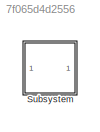
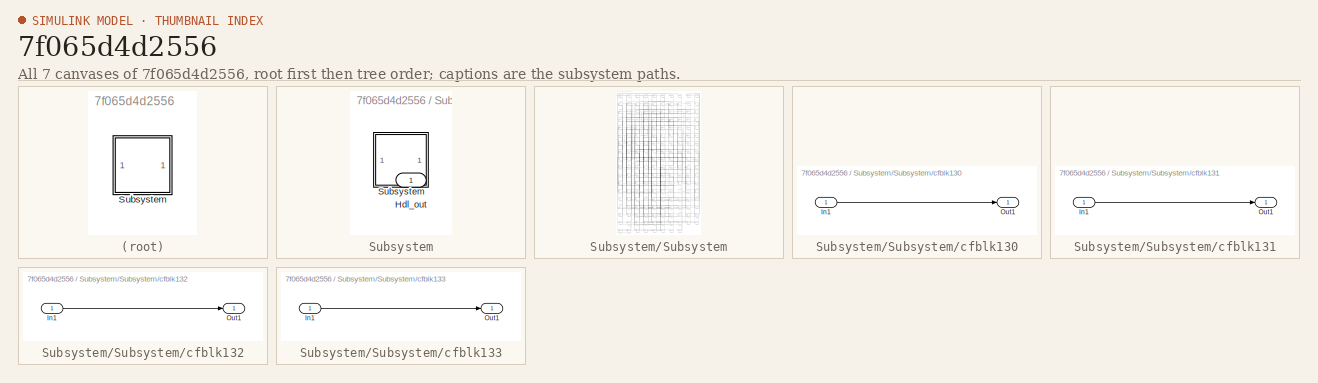
[diagram: thumbnail index - all 7 canvases of the model, root first then tree order]
MODEL slx_7f065d4d2556
KIND model
CONFIG AbsTol = auto
CONFIG EnableMultiTasking = off
CONFIG FixedStep = auto
CONFIG MaxStep = auto
CONFIG MinStep = auto
CONFIG RelTol = 1e-3
CONFIG SampleTimeConstraint = Unconstrained
CONFIG SolverName = VariableStepAuto
CONFIG StartTime = 0.0
CONFIG StopTime = 10.0
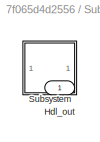
BLOCK [SubSystem] Subsystem
BLOCK [Outport] Subsystem/Hdl_out
  OutDataTypeStr = uint8
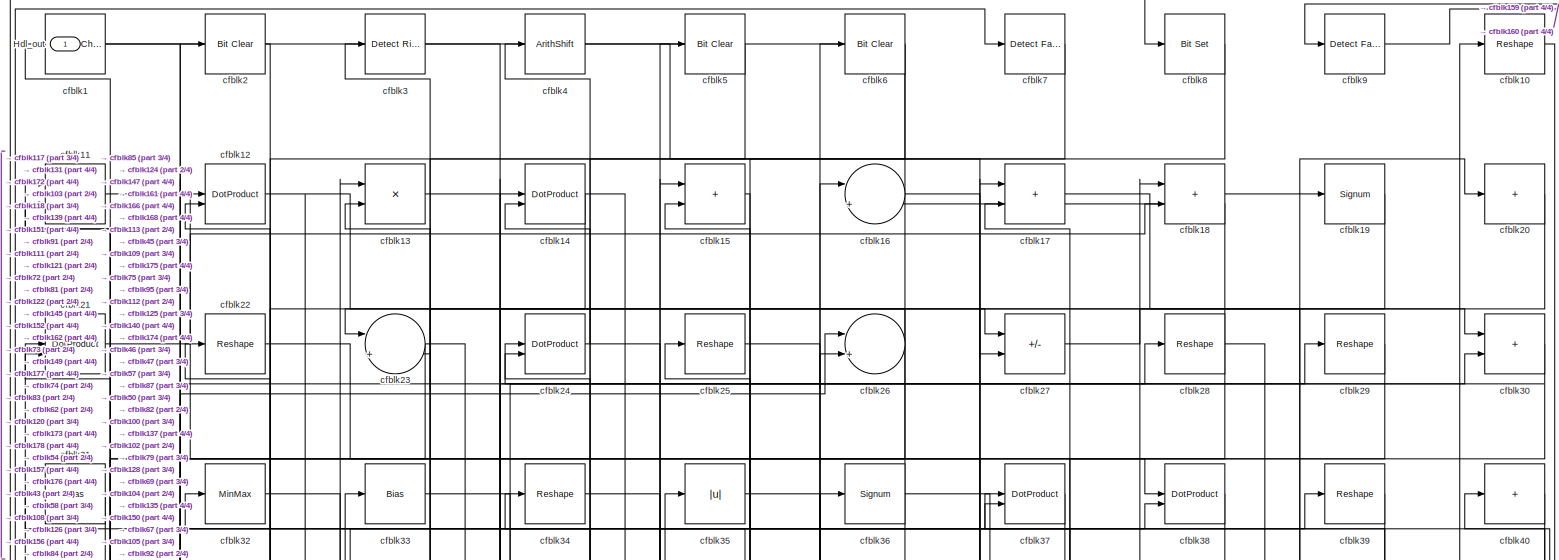
[diagram: Subsystem/Subsystem - part 1/4, full width, top band]
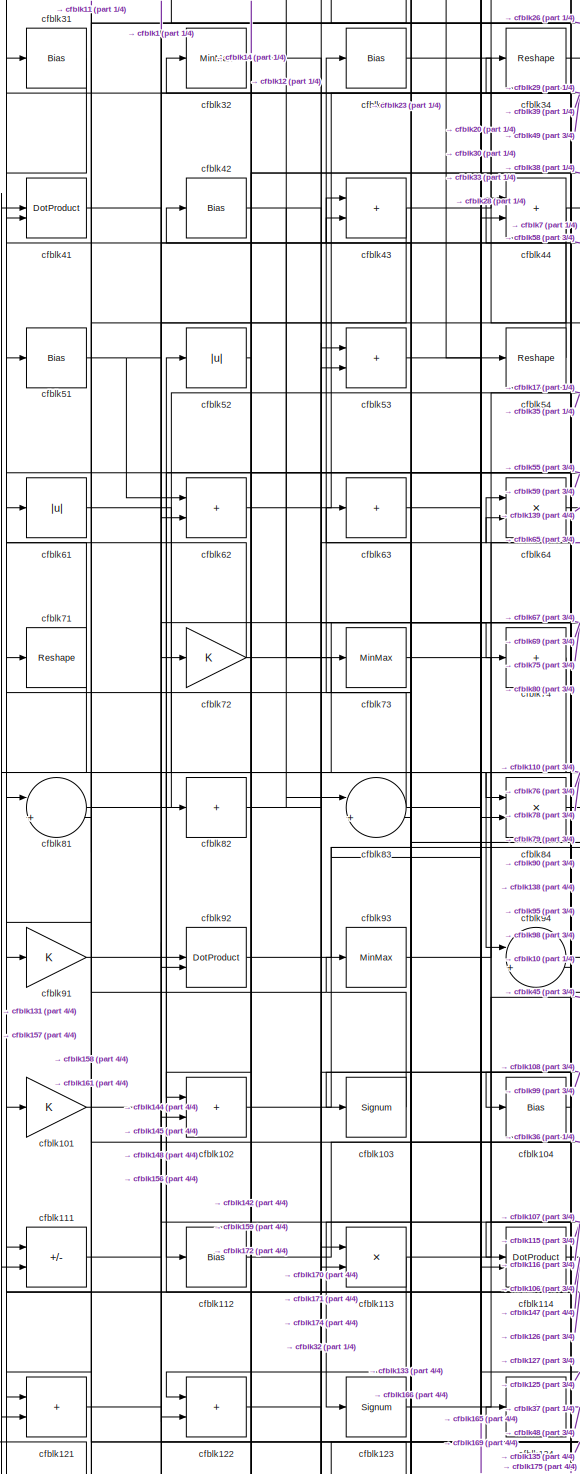
[diagram: Subsystem/Subsystem - part 2/4, middle left region]
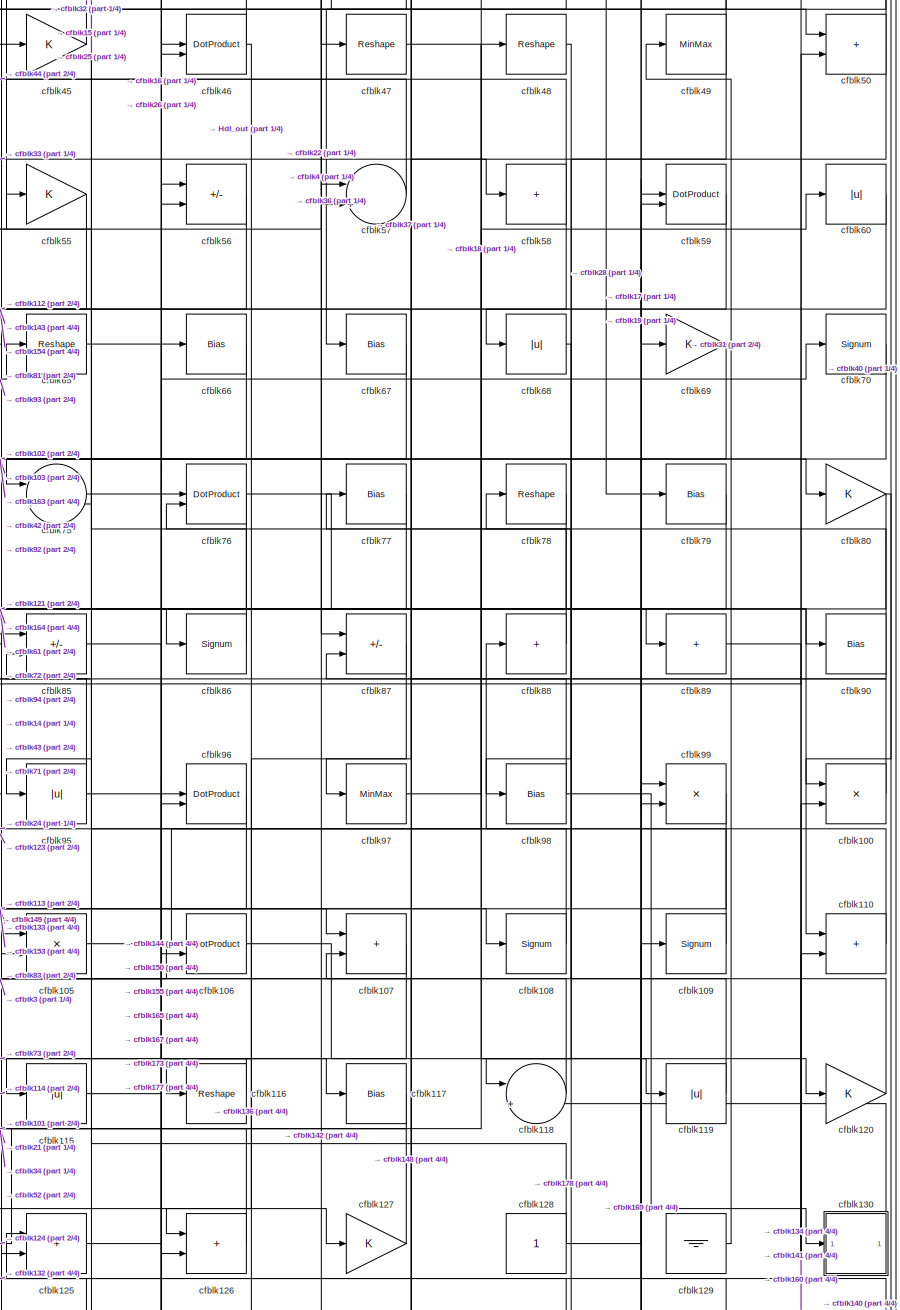
[diagram: Subsystem/Subsystem - part 3/4, middle right region]
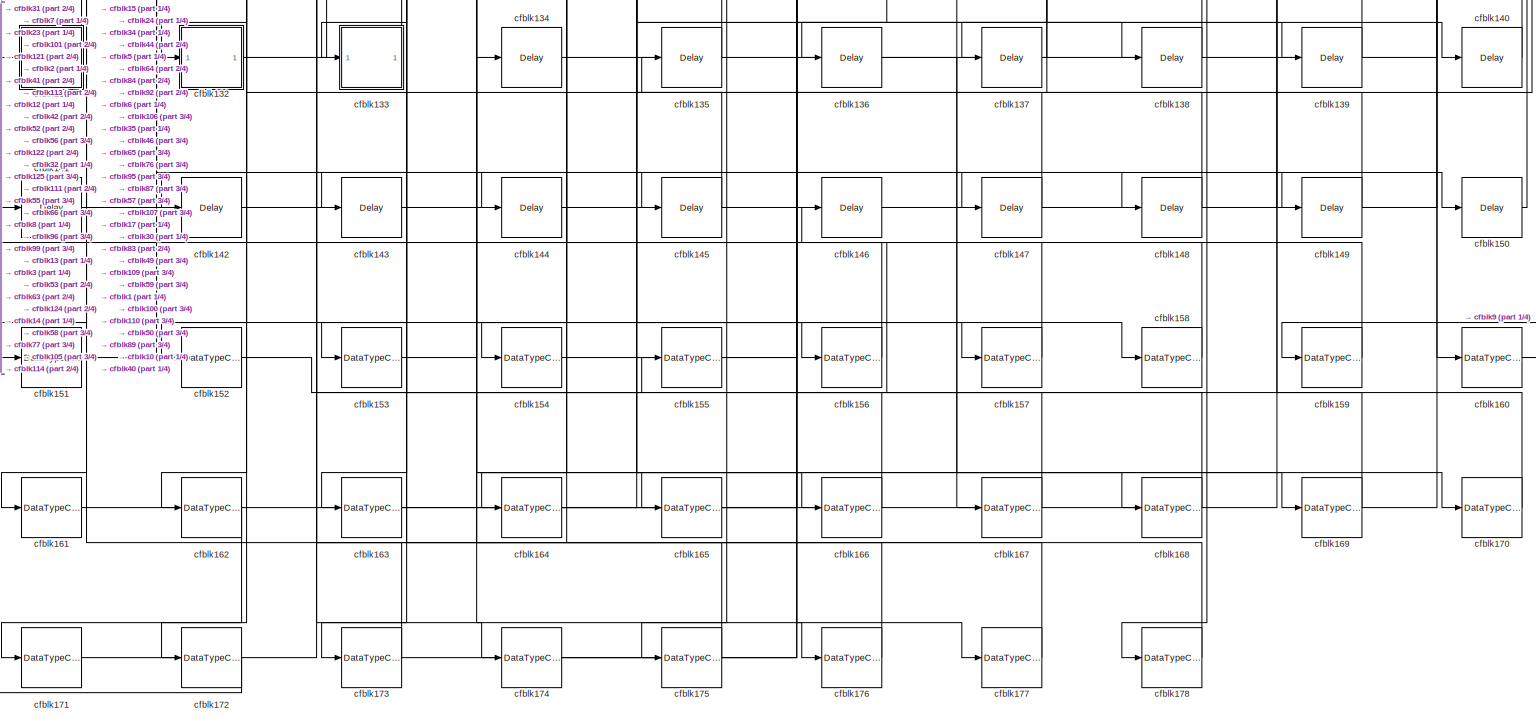
[diagram: Subsystem/Subsystem - part 4/4, full width, bottom band]
BLOCK [SubSystem] Subsystem/Subsystem
BLOCK [Outport] Subsystem/Subsystem/Hdl_out
  OutDataTypeStr = uint8
BLOCK [Reference] Subsystem/Subsystem/cfblk1  REF=simulink/Logic and Bit
Operations/Detect
Change
  LibrarySourceBlock = hdlsllib/Logic and Bit\nOperations/Detect\nChange
  SourceBlock = simulink/Logic and Bit\nOperations/Detect\nChange
  SourceType = Detect Change
BLOCK [Reshape] Subsystem/Subsystem/cfblk10
BLOCK [Product] Subsystem/Subsystem/cfblk100
  Inputs = */
  OutDataTypeStr = uint8
  RndMeth = Zero
  SaturateOnIntegerOverflow = on
BLOCK [Gain] Subsystem/Subsystem/cfblk101
  OutDataTypeStr = uint8
BLOCK [Sum] Subsystem/Subsystem/cfblk102
  IconShape = rectangular
  OutDataTypeStr = uint8
BLOCK [Signum] Subsystem/Subsystem/cfblk103
BLOCK [Bias] Subsystem/Subsystem/cfblk104
  Bias = 0.0
  SaturateOnIntegerOverflow = off
BLOCK [Product] Subsystem/Subsystem/cfblk105
  Inputs = */
  OutDataTypeStr = uint8
  RndMeth = Zero
  SaturateOnIntegerOverflow = on
BLOCK [DotProduct] Subsystem/Subsystem/cfblk106
  OutDataTypeStr = uint8
BLOCK [Sum] Subsystem/Subsystem/cfblk107
  IconShape = rectangular
  OutDataTypeStr = uint8
BLOCK [Signum] Subsystem/Subsystem/cfblk108
BLOCK [Signum] Subsystem/Subsystem/cfblk109
BLOCK [Product] Subsystem/Subsystem/cfblk11
  Inputs = */
  OutDataTypeStr = uint8
  RndMeth = Zero
  SaturateOnIntegerOverflow = on
BLOCK [Sum] Subsystem/Subsystem/cfblk110
  IconShape = rectangular
  OutDataTypeStr = uint8
BLOCK [Sum] Subsystem/Subsystem/cfblk111
  IconShape = rectangular
  Inputs = +-
  OutDataTypeStr = uint8
BLOCK [Bias] Subsystem/Subsystem/cfblk112
  Bias = 0.0
  SaturateOnIntegerOverflow = off
BLOCK [Product] Subsystem/Subsystem/cfblk113
  Inputs = */
  OutDataTypeStr = uint8
  RndMeth = Zero
  SaturateOnIntegerOverflow = on
BLOCK [DotProduct] Subsystem/Subsystem/cfblk114
  OutDataTypeStr = uint8
BLOCK [Abs] Subsystem/Subsystem/cfblk115
  OutDataTypeStr = uint8
  SaturateOnIntegerOverflow = off
BLOCK [Reshape] Subsystem/Subsystem/cfblk116
BLOCK [Bias] Subsystem/Subsystem/cfblk117
  Bias = 0.0
  SaturateOnIntegerOverflow = off
BLOCK [Sum] Subsystem/Subsystem/cfblk118
  Inputs = |++
  OutDataTypeStr = uint8
BLOCK [Abs] Subsystem/Subsystem/cfblk119
  OutDataTypeStr = uint8
  SaturateOnIntegerOverflow = off
BLOCK [DotProduct] Subsystem/Subsystem/cfblk12
  OutDataTypeStr = uint8
BLOCK [Gain] Subsystem/Subsystem/cfblk120
  OutDataTypeStr = uint8
BLOCK [Sum] Subsystem/Subsystem/cfblk121
  IconShape = rectangular
  OutDataTypeStr = uint8
BLOCK [Sum] Subsystem/Subsystem/cfblk122
  IconShape = rectangular
  OutDataTypeStr = uint8
BLOCK [Signum] Subsystem/Subsystem/cfblk123
BLOCK [Sum] Subsystem/Subsystem/cfblk124
  IconShape = rectangular
  Inputs = +
  OutDataTypeStr = uint8
BLOCK [Sum] Subsystem/Subsystem/cfblk125
  IconShape = rectangular
  OutDataTypeStr = uint8
BLOCK [Sum] Subsystem/Subsystem/cfblk126
  IconShape = rectangular
  OutDataTypeStr = uint8
BLOCK [Gain] Subsystem/Subsystem/cfblk127
  OutDataTypeStr = uint8
BLOCK [Constant] Subsystem/Subsystem/cfblk128
  OutDataTypeStr = uint8
  SampleTime = -1
BLOCK [Ground] Subsystem/Subsystem/cfblk129
BLOCK [Product] Subsystem/Subsystem/cfblk13
  Inputs = */
  OutDataTypeStr = uint8
  RndMeth = Zero
  SaturateOnIntegerOverflow = on
BLOCK [SubSystem] Subsystem/Subsystem/cfblk130
  LibrarySourceBlock = hdlsllib/Ports &\nSubsystems/Subsystem
BLOCK [Inport] Subsystem/Subsystem/cfblk130/In1
BLOCK [Outport] Subsystem/Subsystem/cfblk130/Out1
BLOCK [SubSystem] Subsystem/Subsystem/cfblk131
  LibrarySourceBlock = hdlsllib/Ports &\nSubsystems/Subsystem
BLOCK [Inport] Subsystem/Subsystem/cfblk131/In1
BLOCK [Outport] Subsystem/Subsystem/cfblk131/Out1
BLOCK [SubSystem] Subsystem/Subsystem/cfblk132
  LibrarySourceBlock = hdlsllib/Ports &\nSubsystems/Subsystem
BLOCK [Inport] Subsystem/Subsystem/cfblk132/In1
BLOCK [Outport] Subsystem/Subsystem/cfblk132/Out1
BLOCK [SubSystem] Subsystem/Subsystem/cfblk133
  LibrarySourceBlock = hdlsllib/Ports &\nSubsystems/Subsystem
BLOCK [Inport] Subsystem/Subsystem/cfblk133/In1
BLOCK [Outport] Subsystem/Subsystem/cfblk133/Out1
BLOCK [Delay] Subsystem/Subsystem/cfblk134
  InputPortMap = u0
  SampleTime = 1
BLOCK [Delay] Subsystem/Subsystem/cfblk135
  InputPortMap = u0
  SampleTime = 1
BLOCK [Delay] Subsystem/Subsystem/cfblk136
  InputPortMap = u0
  SampleTime = 1
BLOCK [Delay] Subsystem/Subsystem/cfblk137
  InputPortMap = u0
  SampleTime = 1
BLOCK [Delay] Subsystem/Subsystem/cfblk138
  InputPortMap = u0
  SampleTime = 1
BLOCK [Delay] Subsystem/Subsystem/cfblk139
  InputPortMap = u0
  SampleTime = 1
BLOCK [DotProduct] Subsystem/Subsystem/cfblk14
  OutDataTypeStr = uint8
BLOCK [Delay] Subsystem/Subsystem/cfblk140
  InputPortMap = u0
  SampleTime = 1
BLOCK [Delay] Subsystem/Subsystem/cfblk141
  InputPortMap = u0
  SampleTime = 1
BLOCK [Delay] Subsystem/Subsystem/cfblk142
  InputPortMap = u0
  SampleTime = 1
BLOCK [Delay] Subsystem/Subsystem/cfblk143
  InputPortMap = u0
  SampleTime = 1
BLOCK [Delay] Subsystem/Subsystem/cfblk144
  InputPortMap = u0
  SampleTime = 1
BLOCK [Delay] Subsystem/Subsystem/cfblk145
  InputPortMap = u0
  SampleTime = 1
BLOCK [Delay] Subsystem/Subsystem/cfblk146
  InputPortMap = u0
  SampleTime = 1
BLOCK [Delay] Subsystem/Subsystem/cfblk147
  InputPortMap = u0
  SampleTime = 1
BLOCK [Delay] Subsystem/Subsystem/cfblk148
  InputPortMap = u0
  SampleTime = 1
BLOCK [Delay] Subsystem/Subsystem/cfblk149
  InputPortMap = u0
  SampleTime = 1
BLOCK [Sum] Subsystem/Subsystem/cfblk15
  IconShape = rectangular
  OutDataTypeStr = uint8
BLOCK [Delay] Subsystem/Subsystem/cfblk150
  InputPortMap = u0
  SampleTime = 1
BLOCK [DataTypeConversion] Subsystem/Subsystem/cfblk151
  OutDataTypeStr = uint8
  RndMeth = Floor
  SaturateOnIntegerOverflow = off
BLOCK [DataTypeConversion] Subsystem/Subsystem/cfblk152
  OutDataTypeStr = uint8
  RndMeth = Floor
  SaturateOnIntegerOverflow = off
BLOCK [DataTypeConversion] Subsystem/Subsystem/cfblk153
  OutDataTypeStr = uint8
  RndMeth = Floor
  SaturateOnIntegerOverflow = off
BLOCK [DataTypeConversion] Subsystem/Subsystem/cfblk154
  OutDataTypeStr = uint8
  RndMeth = Floor
  SaturateOnIntegerOverflow = off
BLOCK [DataTypeConversion] Subsystem/Subsystem/cfblk155
  OutDataTypeStr = uint8
  RndMeth = Floor
  SaturateOnIntegerOverflow = off
BLOCK [DataTypeConversion] Subsystem/Subsystem/cfblk156
  OutDataTypeStr = uint8
  RndMeth = Floor
  SaturateOnIntegerOverflow = off
BLOCK [DataTypeConversion] Subsystem/Subsystem/cfblk157
  OutDataTypeStr = uint8
  RndMeth = Floor
  SaturateOnIntegerOverflow = off
BLOCK [DataTypeConversion] Subsystem/Subsystem/cfblk158
  OutDataTypeStr = uint8
  RndMeth = Floor
  SaturateOnIntegerOverflow = off
BLOCK [DataTypeConversion] Subsystem/Subsystem/cfblk159
  OutDataTypeStr = uint8
  RndMeth = Floor
  SaturateOnIntegerOverflow = off
BLOCK [Sum] Subsystem/Subsystem/cfblk16
  Inputs = |++
  OutDataTypeStr = uint8
BLOCK [DataTypeConversion] Subsystem/Subsystem/cfblk160
  OutDataTypeStr = uint8
  RndMeth = Floor
  SaturateOnIntegerOverflow = off
BLOCK [DataTypeConversion] Subsystem/Subsystem/cfblk161
  OutDataTypeStr = uint8
  RndMeth = Floor
  SaturateOnIntegerOverflow = off
BLOCK [DataTypeConversion] Subsystem/Subsystem/cfblk162
  OutDataTypeStr = uint8
  RndMeth = Floor
  SaturateOnIntegerOverflow = off
BLOCK [DataTypeConversion] Subsystem/Subsystem/cfblk163
  OutDataTypeStr = uint8
  RndMeth = Floor
  SaturateOnIntegerOverflow = off
BLOCK [DataTypeConversion] Subsystem/Subsystem/cfblk164
  OutDataTypeStr = uint8
  RndMeth = Floor
  SaturateOnIntegerOverflow = off
BLOCK [DataTypeConversion] Subsystem/Subsystem/cfblk165
  OutDataTypeStr = uint8
  RndMeth = Floor
  SaturateOnIntegerOverflow = off
BLOCK [DataTypeConversion] Subsystem/Subsystem/cfblk166
  OutDataTypeStr = uint8
  RndMeth = Floor
  SaturateOnIntegerOverflow = off
BLOCK [DataTypeConversion] Subsystem/Subsystem/cfblk167
  OutDataTypeStr = uint8
  RndMeth = Floor
  SaturateOnIntegerOverflow = off
BLOCK [DataTypeConversion] Subsystem/Subsystem/cfblk168
  OutDataTypeStr = uint8
  RndMeth = Floor
  SaturateOnIntegerOverflow = off
BLOCK [DataTypeConversion] Subsystem/Subsystem/cfblk169
  OutDataTypeStr = uint8
  RndMeth = Floor
  SaturateOnIntegerOverflow = off
BLOCK [Sum] Subsystem/Subsystem/cfblk17
  IconShape = rectangular
  OutDataTypeStr = uint8
BLOCK [DataTypeConversion] Subsystem/Subsystem/cfblk170
  OutDataTypeStr = uint8
  RndMeth = Floor
  SaturateOnIntegerOverflow = off
BLOCK [DataTypeConversion] Subsystem/Subsystem/cfblk171
  OutDataTypeStr = uint8
  RndMeth = Floor
  SaturateOnIntegerOverflow = off
BLOCK [DataTypeConversion] Subsystem/Subsystem/cfblk172
  OutDataTypeStr = uint8
  RndMeth = Floor
  SaturateOnIntegerOverflow = off
BLOCK [DataTypeConversion] Subsystem/Subsystem/cfblk173
  OutDataTypeStr = uint8
  RndMeth = Floor
  SaturateOnIntegerOverflow = off
BLOCK [DataTypeConversion] Subsystem/Subsystem/cfblk174
  OutDataTypeStr = uint8
  RndMeth = Floor
  SaturateOnIntegerOverflow = off
BLOCK [DataTypeConversion] Subsystem/Subsystem/cfblk175
  OutDataTypeStr = uint8
  RndMeth = Floor
  SaturateOnIntegerOverflow = off
BLOCK [DataTypeConversion] Subsystem/Subsystem/cfblk176
  OutDataTypeStr = uint8
  RndMeth = Floor
  SaturateOnIntegerOverflow = off
BLOCK [DataTypeConversion] Subsystem/Subsystem/cfblk177
  OutDataTypeStr = uint8
  RndMeth = Floor
  SaturateOnIntegerOverflow = off
BLOCK [DataTypeConversion] Subsystem/Subsystem/cfblk178
  OutDataTypeStr = uint8
  RndMeth = Floor
  SaturateOnIntegerOverflow = off
BLOCK [Sum] Subsystem/Subsystem/cfblk18
  IconShape = rectangular
  OutDataTypeStr = uint8
BLOCK [Signum] Subsystem/Subsystem/cfblk19
BLOCK [Reference] Subsystem/Subsystem/cfblk2  REF=simulink/Logic and Bit
Operations/Bit Clear
  LibrarySourceBlock = hdlsllib/Logic and Bit\nOperations/Bit Clear
  SourceBlock = simulink/Logic and Bit\nOperations/Bit Clear
  SourceType = Bit Clear
BLOCK [Sum] Subsystem/Subsystem/cfblk20
  IconShape = rectangular
  Inputs = +
  OutDataTypeStr = uint8
BLOCK [DotProduct] Subsystem/Subsystem/cfblk21
  OutDataTypeStr = uint8
BLOCK [Reshape] Subsystem/Subsystem/cfblk22
BLOCK [Sum] Subsystem/Subsystem/cfblk23
  Inputs = |++
  OutDataTypeStr = uint8
BLOCK [DotProduct] Subsystem/Subsystem/cfblk24
  OutDataTypeStr = uint8
BLOCK [Reshape] Subsystem/Subsystem/cfblk25
BLOCK [Sum] Subsystem/Subsystem/cfblk26
  Inputs = |++
  OutDataTypeStr = uint8
BLOCK [Sum] Subsystem/Subsystem/cfblk27
  IconShape = rectangular
  Inputs = +-
  OutDataTypeStr = uint8
BLOCK [Reshape] Subsystem/Subsystem/cfblk28
BLOCK [Reshape] Subsystem/Subsystem/cfblk29
BLOCK [Reference] Subsystem/Subsystem/cfblk3  REF=hdlsllib/Logic and Bit
Operations/Detect Rise
Positive
  SourceBlock = hdlsllib/Logic and Bit\nOperations/Detect Rise\nPositive
  SourceType = Detect Rise Positive
BLOCK [Sum] Subsystem/Subsystem/cfblk30
  IconShape = rectangular
  OutDataTypeStr = uint8
BLOCK [Bias] Subsystem/Subsystem/cfblk31
  Bias = 0.0
  SaturateOnIntegerOverflow = off
BLOCK [MinMax] Subsystem/Subsystem/cfblk32
  OutDataTypeStr = uint8
BLOCK [Bias] Subsystem/Subsystem/cfblk33
  Bias = 0.0
  SaturateOnIntegerOverflow = off
BLOCK [Reshape] Subsystem/Subsystem/cfblk34
BLOCK [Abs] Subsystem/Subsystem/cfblk35
  OutDataTypeStr = uint8
  SaturateOnIntegerOverflow = off
BLOCK [Signum] Subsystem/Subsystem/cfblk36
BLOCK [DotProduct] Subsystem/Subsystem/cfblk37
  OutDataTypeStr = uint8
BLOCK [DotProduct] Subsystem/Subsystem/cfblk38
  OutDataTypeStr = uint8
BLOCK [Reshape] Subsystem/Subsystem/cfblk39
BLOCK [ArithShift] Subsystem/Subsystem/cfblk4
  BitShiftNumber = 8
  InputPortMap = u0
BLOCK [Sum] Subsystem/Subsystem/cfblk40
  IconShape = rectangular
  Inputs = +
  OutDataTypeStr = uint8
BLOCK [DotProduct] Subsystem/Subsystem/cfblk41
  OutDataTypeStr = uint8
BLOCK [Bias] Subsystem/Subsystem/cfblk42
  Bias = 0.0
  SaturateOnIntegerOverflow = off
BLOCK [Sum] Subsystem/Subsystem/cfblk43
  IconShape = rectangular
  OutDataTypeStr = uint8
BLOCK [Sum] Subsystem/Subsystem/cfblk44
  IconShape = rectangular
  OutDataTypeStr = uint8
BLOCK [Gain] Subsystem/Subsystem/cfblk45
  OutDataTypeStr = uint8
BLOCK [DotProduct] Subsystem/Subsystem/cfblk46
  OutDataTypeStr = uint8
BLOCK [Reshape] Subsystem/Subsystem/cfblk47
BLOCK [Reshape] Subsystem/Subsystem/cfblk48
BLOCK [MinMax] Subsystem/Subsystem/cfblk49
  OutDataTypeStr = uint8
BLOCK [Reference] Subsystem/Subsystem/cfblk5  REF=simulink/Logic and Bit
Operations/Bit Clear
  LibrarySourceBlock = hdlsllib/Logic and Bit\nOperations/Bit Clear
  SourceBlock = simulink/Logic and Bit\nOperations/Bit Clear
  SourceType = Bit Clear
BLOCK [Sum] Subsystem/Subsystem/cfblk50
  IconShape = rectangular
  OutDataTypeStr = uint8
BLOCK [Bias] Subsystem/Subsystem/cfblk51
  Bias = 0.0
  SaturateOnIntegerOverflow = off
BLOCK [Abs] Subsystem/Subsystem/cfblk52
  OutDataTypeStr = uint8
  SaturateOnIntegerOverflow = off
BLOCK [Sum] Subsystem/Subsystem/cfblk53
  IconShape = rectangular
  OutDataTypeStr = uint8
BLOCK [Reshape] Subsystem/Subsystem/cfblk54
BLOCK [Gain] Subsystem/Subsystem/cfblk55
  OutDataTypeStr = uint8
BLOCK [Sum] Subsystem/Subsystem/cfblk56
  IconShape = rectangular
  Inputs = +-
  OutDataTypeStr = uint8
BLOCK [Sum] Subsystem/Subsystem/cfblk57
  Inputs = |++
  OutDataTypeStr = uint8
BLOCK [Sum] Subsystem/Subsystem/cfblk58
  IconShape = rectangular
  Inputs = +
  OutDataTypeStr = uint8
BLOCK [DotProduct] Subsystem/Subsystem/cfblk59
  OutDataTypeStr = uint8
BLOCK [Reference] Subsystem/Subsystem/cfblk6  REF=simulink/Logic and Bit
Operations/Bit Clear
  LibrarySourceBlock = hdlsllib/Logic and Bit\nOperations/Bit Clear
  SourceBlock = simulink/Logic and Bit\nOperations/Bit Clear
  SourceType = Bit Clear
BLOCK [Abs] Subsystem/Subsystem/cfblk60
  OutDataTypeStr = uint8
  SaturateOnIntegerOverflow = off
BLOCK [Abs] Subsystem/Subsystem/cfblk61
  OutDataTypeStr = uint8
  SaturateOnIntegerOverflow = off
BLOCK [Sum] Subsystem/Subsystem/cfblk62
  IconShape = rectangular
  OutDataTypeStr = uint8
BLOCK [Sum] Subsystem/Subsystem/cfblk63
  IconShape = rectangular
  Inputs = +
  OutDataTypeStr = uint8
BLOCK [Product] Subsystem/Subsystem/cfblk64
  Inputs = */
  OutDataTypeStr = uint8
  RndMeth = Zero
  SaturateOnIntegerOverflow = on
BLOCK [Reshape] Subsystem/Subsystem/cfblk65
BLOCK [Bias] Subsystem/Subsystem/cfblk66
  Bias = 0.0
  SaturateOnIntegerOverflow = off
BLOCK [Bias] Subsystem/Subsystem/cfblk67
  Bias = 0.0
  SaturateOnIntegerOverflow = off
BLOCK [Abs] Subsystem/Subsystem/cfblk68
  OutDataTypeStr = uint8
  SaturateOnIntegerOverflow = off
BLOCK [Gain] Subsystem/Subsystem/cfblk69
  OutDataTypeStr = uint8
BLOCK [Reference] Subsystem/Subsystem/cfblk7  REF=hdlsllib/Logic and Bit
Operations/Detect Fall
Nonpositive
  SourceBlock = hdlsllib/Logic and Bit\nOperations/Detect Fall\nNonpositive
  SourceType = Detect Fall Nonpositive
BLOCK [Signum] Subsystem/Subsystem/cfblk70
BLOCK [Reshape] Subsystem/Subsystem/cfblk71
BLOCK [Gain] Subsystem/Subsystem/cfblk72
  OutDataTypeStr = uint8
BLOCK [MinMax] Subsystem/Subsystem/cfblk73
  OutDataTypeStr = uint8
BLOCK [Sum] Subsystem/Subsystem/cfblk74
  IconShape = rectangular
  Inputs = +
  OutDataTypeStr = uint8
BLOCK [Sum] Subsystem/Subsystem/cfblk75
  Inputs = |++
  OutDataTypeStr = uint8
BLOCK [DotProduct] Subsystem/Subsystem/cfblk76
  OutDataTypeStr = uint8
BLOCK [Bias] Subsystem/Subsystem/cfblk77
  Bias = 0.0
  SaturateOnIntegerOverflow = off
BLOCK [Reshape] Subsystem/Subsystem/cfblk78
BLOCK [Bias] Subsystem/Subsystem/cfblk79
  Bias = 0.0
  SaturateOnIntegerOverflow = off
BLOCK [Reference] Subsystem/Subsystem/cfblk8  REF=simulink/Logic and Bit
Operations/Bit Set
  LibrarySourceBlock = hdlsllib/Logic and Bit\nOperations/Bit Set
  SourceBlock = simulink/Logic and Bit\nOperations/Bit Set
  SourceType = Bit Set
BLOCK [Gain] Subsystem/Subsystem/cfblk80
  OutDataTypeStr = uint8
BLOCK [Sum] Subsystem/Subsystem/cfblk81
  Inputs = |++
  OutDataTypeStr = uint8
BLOCK [Sum] Subsystem/Subsystem/cfblk82
  IconShape = rectangular
  Inputs = +
  OutDataTypeStr = uint8
BLOCK [Sum] Subsystem/Subsystem/cfblk83
  Inputs = |++
  OutDataTypeStr = uint8
BLOCK [Product] Subsystem/Subsystem/cfblk84
  Inputs = */
  OutDataTypeStr = uint8
  RndMeth = Zero
  SaturateOnIntegerOverflow = on
BLOCK [Sum] Subsystem/Subsystem/cfblk85
  IconShape = rectangular
  Inputs = +-
  OutDataTypeStr = uint8
BLOCK [Signum] Subsystem/Subsystem/cfblk86
BLOCK [Sum] Subsystem/Subsystem/cfblk87
  IconShape = rectangular
  Inputs = +-
  OutDataTypeStr = uint8
BLOCK [Sum] Subsystem/Subsystem/cfblk88
  IconShape = rectangular
  Inputs = +
  OutDataTypeStr = uint8
BLOCK [Sum] Subsystem/Subsystem/cfblk89
  IconShape = rectangular
  Inputs = +
  OutDataTypeStr = uint8
BLOCK [Reference] Subsystem/Subsystem/cfblk9  REF=hdlsllib/Logic and Bit
Operations/Detect Fall
Nonpositive
  SourceBlock = hdlsllib/Logic and Bit\nOperations/Detect Fall\nNonpositive
  SourceType = Detect Fall Nonpositive
BLOCK [Bias] Subsystem/Subsystem/cfblk90
  Bias = 0.0
  SaturateOnIntegerOverflow = off
BLOCK [Gain] Subsystem/Subsystem/cfblk91
  OutDataTypeStr = uint8
BLOCK [DotProduct] Subsystem/Subsystem/cfblk92
  OutDataTypeStr = uint8
BLOCK [MinMax] Subsystem/Subsystem/cfblk93
  OutDataTypeStr = uint8
BLOCK [Sum] Subsystem/Subsystem/cfblk94
  Inputs = |++
  OutDataTypeStr = uint8
BLOCK [Abs] Subsystem/Subsystem/cfblk95
  OutDataTypeStr = uint8
  SaturateOnIntegerOverflow = off
BLOCK [DotProduct] Subsystem/Subsystem/cfblk96
  OutDataTypeStr = uint8
BLOCK [MinMax] Subsystem/Subsystem/cfblk97
  OutDataTypeStr = uint8
BLOCK [Bias] Subsystem/Subsystem/cfblk98
  Bias = 0.0
  SaturateOnIntegerOverflow = off
BLOCK [Product] Subsystem/Subsystem/cfblk99
  Inputs = */
  OutDataTypeStr = uint8
  RndMeth = Zero
  SaturateOnIntegerOverflow = on
LINE Subsystem/Subsystem/cfblk100:1 -> Subsystem/Subsystem/cfblk37:1
NET Subsystem/Subsystem/cfblk101:1 -> Subsystem/Subsystem/cfblk144:1, Subsystem/Subsystem/cfblk145:1
LINE Subsystem/Subsystem/cfblk102:1 -> Subsystem/Subsystem/cfblk80:1
NET Subsystem/Subsystem/cfblk103:1 -> Subsystem/Subsystem/cfblk11:2, Subsystem/Subsystem/cfblk93:1
LINE Subsystem/Subsystem/cfblk104:1 -> Subsystem/Subsystem/cfblk64:1
NET Subsystem/Subsystem/cfblk105:1 -> Subsystem/Subsystem/cfblk107:1, Subsystem/Subsystem/cfblk18:1
LINE Subsystem/Subsystem/cfblk106:1 -> Subsystem/Subsystem/cfblk119:1
LINE Subsystem/Subsystem/cfblk107:1 -> Subsystem/Subsystem/cfblk123:1
LINE Subsystem/Subsystem/cfblk108:1 -> Subsystem/Subsystem/cfblk24:1
LINE Subsystem/Subsystem/cfblk109:1 -> Subsystem/Subsystem/cfblk25:1
LINE Subsystem/Subsystem/cfblk10:1 -> Subsystem/Subsystem/cfblk135:1
LINE Subsystem/Subsystem/cfblk110:1 -> Subsystem/Subsystem/cfblk88:1
LINE Subsystem/Subsystem/cfblk111:1 -> Subsystem/Subsystem/cfblk12:1
LINE Subsystem/Subsystem/cfblk112:1 -> Subsystem/Subsystem/cfblk36:1
NET Subsystem/Subsystem/cfblk113:1 -> Subsystem/Subsystem/cfblk172:1, Subsystem/Subsystem/cfblk35:1
NET Subsystem/Subsystem/cfblk114:1 -> Subsystem/Subsystem/cfblk106:1, Subsystem/Subsystem/cfblk147:1
LINE Subsystem/Subsystem/cfblk115:1 -> Subsystem/Subsystem/cfblk56:2
LINE Subsystem/Subsystem/cfblk116:1 -> Subsystem/Subsystem/cfblk114:1
LINE Subsystem/Subsystem/cfblk117:1 -> Subsystem/Subsystem/cfblk21:1
LINE Subsystem/Subsystem/cfblk118:1 -> Subsystem/Subsystem/cfblk21:2
LINE Subsystem/Subsystem/cfblk119:1 -> Subsystem/Subsystem/cfblk78:1
LINE Subsystem/Subsystem/cfblk11:1 -> Subsystem/Subsystem/cfblk38:1
LINE Subsystem/Subsystem/cfblk120:1 -> Subsystem/Subsystem/cfblk3:1
NET Subsystem/Subsystem/cfblk121:1 -> Subsystem/Subsystem/cfblk148:1, Subsystem/Subsystem/cfblk29:1, Subsystem/Subsystem/cfblk38:2
LINE Subsystem/Subsystem/cfblk122:1 -> Subsystem/Subsystem/cfblk174:1
LINE Subsystem/Subsystem/cfblk123:1 -> Subsystem/Subsystem/cfblk45:1
NET Subsystem/Subsystem/cfblk124:1 -> Subsystem/Subsystem/cfblk37:2, Subsystem/Subsystem/cfblk48:1
NET Subsystem/Subsystem/cfblk125:1 -> Subsystem/Subsystem/cfblk16:1, Subsystem/Subsystem/cfblk26:2
NET Subsystem/Subsystem/cfblk126:1 -> Subsystem/Subsystem/cfblk101:1, Subsystem/Subsystem/cfblk34:1
LINE Subsystem/Subsystem/cfblk127:1 -> Subsystem/Subsystem/cfblk52:1
NET Subsystem/Subsystem/cfblk128:1 -> Subsystem/Subsystem/cfblk19:1, Subsystem/Subsystem/cfblk85:2
LINE Subsystem/Subsystem/cfblk129:1 -> Subsystem/Subsystem/cfblk49:1
NET Subsystem/Subsystem/cfblk12:1 -> Subsystem/Subsystem/cfblk27:1, Subsystem/Subsystem/cfblk73:1
LINE Subsystem/Subsystem/cfblk130/In1:1 -> Subsystem/Subsystem/cfblk130/Out1:1
LINE Subsystem/Subsystem/cfblk130:1 -> Subsystem/Subsystem/cfblk118:2
LINE Subsystem/Subsystem/cfblk131/In1:1 -> Subsystem/Subsystem/cfblk131/Out1:1
LINE Subsystem/Subsystem/cfblk131:1 -> Subsystem/Subsystem/cfblk7:1
LINE Subsystem/Subsystem/cfblk132/In1:1 -> Subsystem/Subsystem/cfblk132/Out1:1
LINE Subsystem/Subsystem/cfblk132:1 -> Subsystem/Subsystem/cfblk125:1
LINE Subsystem/Subsystem/cfblk133/In1:1 -> Subsystem/Subsystem/cfblk133/Out1:1
LINE Subsystem/Subsystem/cfblk133:1 -> Subsystem/Subsystem/cfblk111:1
LINE Subsystem/Subsystem/cfblk134:1 -> Subsystem/Subsystem/cfblk110:2
LINE Subsystem/Subsystem/cfblk135:1 -> Subsystem/Subsystem/cfblk92:1
LINE Subsystem/Subsystem/cfblk136:1 -> Subsystem/Subsystem/cfblk170:1
LINE Subsystem/Subsystem/cfblk137:1 -> Subsystem/Subsystem/cfblk17:2
LINE Subsystem/Subsystem/cfblk138:1 -> Subsystem/Subsystem/cfblk83:2
LINE Subsystem/Subsystem/cfblk139:1 -> Subsystem/Subsystem/cfblk1:1
LINE Subsystem/Subsystem/cfblk13:1 -> Subsystem/Subsystem/cfblk176:1
LINE Subsystem/Subsystem/cfblk140:1 -> Subsystem/Subsystem/cfblk99:1
LINE Subsystem/Subsystem/cfblk141:1 -> Subsystem/Subsystem/cfblk50:2
LINE Subsystem/Subsystem/cfblk142:1 -> Subsystem/Subsystem/cfblk57:2
LINE Subsystem/Subsystem/cfblk143:1 -> Subsystem/Subsystem/cfblk59:2
LINE Subsystem/Subsystem/cfblk144:1 -> Subsystem/Subsystem/cfblk56:1
LINE Subsystem/Subsystem/cfblk145:1 -> Subsystem/Subsystem/cfblk12:2
LINE Subsystem/Subsystem/cfblk146:1 -> Subsystem/Subsystem/cfblk167:1
LINE Subsystem/Subsystem/cfblk147:1 -> Subsystem/Subsystem/cfblk15:1
LINE Subsystem/Subsystem/cfblk148:1 -> Subsystem/Subsystem/cfblk107:2
LINE Subsystem/Subsystem/cfblk149:1 -> Subsystem/Subsystem/cfblk105:1
NET Subsystem/Subsystem/cfblk14:1 -> Subsystem/Subsystem/cfblk122:1, Subsystem/Subsystem/cfblk85:1
LINE Subsystem/Subsystem/cfblk150:1 -> Subsystem/Subsystem/cfblk40:1
LINE Subsystem/Subsystem/cfblk151:1 -> Subsystem/Subsystem/cfblk2:1
LINE Subsystem/Subsystem/cfblk152:1 -> Subsystem/Subsystem/cfblk155:1
LINE Subsystem/Subsystem/cfblk153:1 -> Subsystem/Subsystem/cfblk134:1
LINE Subsystem/Subsystem/cfblk154:1 -> Subsystem/Subsystem/cfblk96:1
LINE Subsystem/Subsystem/cfblk155:1 -> Subsystem/Subsystem/cfblk96:2
LINE Subsystem/Subsystem/cfblk156:1 -> Subsystem/Subsystem/cfblk14:2
LINE Subsystem/Subsystem/cfblk157:1 -> Subsystem/Subsystem/cfblk41:1
LINE Subsystem/Subsystem/cfblk158:1 -> Subsystem/Subsystem/cfblk41:2
LINE Subsystem/Subsystem/cfblk159:1 -> Subsystem/Subsystem/cfblk42:1
LINE Subsystem/Subsystem/cfblk15:1 -> Subsystem/Subsystem/cfblk95:1
LINE Subsystem/Subsystem/cfblk160:1 -> Subsystem/Subsystem/cfblk9:1
LINE Subsystem/Subsystem/cfblk161:1 -> Subsystem/Subsystem/cfblk5:1
LINE Subsystem/Subsystem/cfblk162:1 -> Subsystem/Subsystem/cfblk171:1
LINE Subsystem/Subsystem/cfblk163:1 -> Subsystem/Subsystem/cfblk109:1
LINE Subsystem/Subsystem/cfblk164:1 -> Subsystem/Subsystem/cfblk66:1
LINE Subsystem/Subsystem/cfblk165:1 -> Subsystem/Subsystem/cfblk46:1
LINE Subsystem/Subsystem/cfblk166:1 -> Subsystem/Subsystem/cfblk63:1
LINE Subsystem/Subsystem/cfblk167:1 -> Subsystem/Subsystem/cfblk76:1
LINE Subsystem/Subsystem/cfblk168:1 -> Subsystem/Subsystem/cfblk146:1
NET Subsystem/Subsystem/cfblk169:1 -> Subsystem/Subsystem/cfblk100:2, Subsystem/Subsystem/cfblk59:1
LINE Subsystem/Subsystem/cfblk16:1 -> Subsystem/Subsystem/cfblk87:1
LINE Subsystem/Subsystem/cfblk170:1 -> Subsystem/Subsystem/cfblk53:1
LINE Subsystem/Subsystem/cfblk171:1 -> Subsystem/Subsystem/cfblk53:2
LINE Subsystem/Subsystem/cfblk172:1 -> Subsystem/Subsystem/cfblk8:1
NET Subsystem/Subsystem/cfblk173:1 -> Subsystem/Subsystem/cfblk106:2, Subsystem/Subsystem/cfblk141:1
LINE Subsystem/Subsystem/cfblk174:1 -> Subsystem/Subsystem/cfblk6:1
NET Subsystem/Subsystem/cfblk175:1 -> Subsystem/Subsystem/cfblk113:1, Subsystem/Subsystem/cfblk124:1
LINE Subsystem/Subsystem/cfblk176:1 -> Subsystem/Subsystem/cfblk14:1
LINE Subsystem/Subsystem/cfblk177:1 -> Subsystem/Subsystem/cfblk13:1
LINE Subsystem/Subsystem/cfblk178:1 -> Subsystem/Subsystem/cfblk13:2
LINE Subsystem/Subsystem/cfblk17:1 -> Subsystem/Subsystem/cfblk69:1
LINE Subsystem/Subsystem/cfblk18:1 -> Subsystem/Subsystem/cfblk20:1
NET Subsystem/Subsystem/cfblk19:1 -> Subsystem/Subsystem/cfblk23:2, Subsystem/Subsystem/cfblk27:2
LINE Subsystem/Subsystem/cfblk1:1 -> Subsystem/Subsystem/cfblk72:1
LINE Subsystem/Subsystem/cfblk20:1 -> Subsystem/Subsystem/cfblk84:2
LINE Subsystem/Subsystem/cfblk21:1 -> Subsystem/Subsystem/cfblk18:2
LINE Subsystem/Subsystem/cfblk22:1 -> Subsystem/Subsystem/cfblk47:1
NET Subsystem/Subsystem/cfblk23:1 -> Subsystem/Subsystem/cfblk151:1, Subsystem/Subsystem/cfblk54:1
NET Subsystem/Subsystem/cfblk24:1 -> Subsystem/Subsystem/cfblk166:1, Subsystem/Subsystem/cfblk4:1
LINE Subsystem/Subsystem/cfblk25:1 -> Subsystem/Subsystem/cfblk46:2
NET Subsystem/Subsystem/cfblk26:1 -> Subsystem/Subsystem/cfblk102:2, Subsystem/Subsystem/cfblk23:1
LINE Subsystem/Subsystem/cfblk27:1 -> Subsystem/Subsystem/cfblk30:1
NET Subsystem/Subsystem/cfblk28:1 -> Subsystem/Subsystem/cfblk16:2, Subsystem/Subsystem/cfblk75:2, Subsystem/Subsystem/cfblk79:1
LINE Subsystem/Subsystem/cfblk29:1 -> Subsystem/Subsystem/cfblk91:1
LINE Subsystem/Subsystem/cfblk2:1 -> Subsystem/Subsystem/cfblk152:1
NET Subsystem/Subsystem/cfblk30:1 -> Subsystem/Subsystem/cfblk137:1, Subsystem/Subsystem/cfblk24:2
LINE Subsystem/Subsystem/cfblk31:1 -> Subsystem/Subsystem/cfblk131:1
NET Subsystem/Subsystem/cfblk32:1 -> Subsystem/Subsystem/cfblk149:1, Subsystem/Subsystem/cfblk74:1
LINE Subsystem/Subsystem/cfblk33:1 -> Subsystem/Subsystem/cfblk58:1
LINE Subsystem/Subsystem/cfblk34:1 -> Subsystem/Subsystem/cfblk168:1
LINE Subsystem/Subsystem/cfblk35:1 -> Subsystem/Subsystem/cfblk140:1
LINE Subsystem/Subsystem/cfblk36:1 -> Subsystem/Subsystem/cfblk50:1
LINE Subsystem/Subsystem/cfblk37:1 -> Subsystem/Subsystem/cfblk82:1
LINE Subsystem/Subsystem/cfblk38:1 -> Subsystem/Subsystem/cfblk102:1
LINE Subsystem/Subsystem/cfblk39:1 -> Subsystem/Subsystem/cfblk104:1
LINE Subsystem/Subsystem/cfblk3:1 -> Subsystem/Subsystem/cfblk157:1
LINE Subsystem/Subsystem/cfblk40:1 -> Subsystem/Subsystem/cfblk67:1
LINE Subsystem/Subsystem/cfblk41:1 -> Subsystem/Subsystem/cfblk156:1
NET Subsystem/Subsystem/cfblk42:1 -> Subsystem/Subsystem/cfblk75:1, Subsystem/Subsystem/cfblk83:1
NET Subsystem/Subsystem/cfblk43:1 -> Subsystem/Subsystem/cfblk122:2, Subsystem/Subsystem/cfblk28:1
NET Subsystem/Subsystem/cfblk44:1 -> Subsystem/Subsystem/cfblk158:1, Subsystem/Subsystem/cfblk161:1, Subsystem/Subsystem/cfblk62:2
LINE Subsystem/Subsystem/cfblk45:1 -> Subsystem/Subsystem/cfblk32:1
NET Subsystem/Subsystem/cfblk46:1 -> Subsystem/Subsystem/Hdl_out:1, Subsystem/Subsystem/cfblk86:1
LINE Subsystem/Subsystem/cfblk47:1 -> Subsystem/Subsystem/cfblk120:1
LINE Subsystem/Subsystem/cfblk48:1 -> Subsystem/Subsystem/cfblk118:1
NET Subsystem/Subsystem/cfblk49:1 -> Subsystem/Subsystem/cfblk178:1, Subsystem/Subsystem/cfblk31:1
LINE Subsystem/Subsystem/cfblk4:1 -> Subsystem/Subsystem/cfblk57:1
NET Subsystem/Subsystem/cfblk50:1 -> Subsystem/Subsystem/cfblk15:2, Subsystem/Subsystem/cfblk97:1
NET Subsystem/Subsystem/cfblk51:1 -> Subsystem/Subsystem/cfblk43:2, Subsystem/Subsystem/cfblk62:1
LINE Subsystem/Subsystem/cfblk52:1 -> Subsystem/Subsystem/cfblk142:1
LINE Subsystem/Subsystem/cfblk53:1 -> Subsystem/Subsystem/cfblk169:1
LINE Subsystem/Subsystem/cfblk54:1 -> Subsystem/Subsystem/cfblk11:1
NET Subsystem/Subsystem/cfblk55:1 -> Subsystem/Subsystem/cfblk143:1, Subsystem/Subsystem/cfblk94:2
LINE Subsystem/Subsystem/cfblk56:1 -> Subsystem/Subsystem/cfblk132:1
LINE Subsystem/Subsystem/cfblk57:1 -> Subsystem/Subsystem/cfblk22:1
NET Subsystem/Subsystem/cfblk58:1 -> Subsystem/Subsystem/cfblk154:1, Subsystem/Subsystem/cfblk44:1, Subsystem/Subsystem/cfblk81:1
LINE Subsystem/Subsystem/cfblk59:1 -> Subsystem/Subsystem/cfblk112:1
LINE Subsystem/Subsystem/cfblk5:1 -> Subsystem/Subsystem/cfblk162:1
LINE Subsystem/Subsystem/cfblk60:1 -> Subsystem/Subsystem/cfblk68:1
LINE Subsystem/Subsystem/cfblk61:1 -> Subsystem/Subsystem/cfblk90:1
LINE Subsystem/Subsystem/cfblk62:1 -> Subsystem/Subsystem/cfblk39:1
LINE Subsystem/Subsystem/cfblk63:1 -> Subsystem/Subsystem/cfblk165:1
LINE Subsystem/Subsystem/cfblk64:1 -> Subsystem/Subsystem/cfblk139:1
LINE Subsystem/Subsystem/cfblk65:1 -> Subsystem/Subsystem/cfblk150:1
LINE Subsystem/Subsystem/cfblk66:1 -> Subsystem/Subsystem/cfblk163:1
LINE Subsystem/Subsystem/cfblk67:1 -> Subsystem/Subsystem/cfblk103:1
LINE Subsystem/Subsystem/cfblk68:1 -> Subsystem/Subsystem/cfblk98:1
LINE Subsystem/Subsystem/cfblk69:1 -> Subsystem/Subsystem/cfblk92:2
LINE Subsystem/Subsystem/cfblk6:1 -> Subsystem/Subsystem/cfblk175:1
NET Subsystem/Subsystem/cfblk70:1 -> Subsystem/Subsystem/cfblk105:2, Subsystem/Subsystem/cfblk99:2
NET Subsystem/Subsystem/cfblk71:1 -> Subsystem/Subsystem/cfblk111:2, Subsystem/Subsystem/cfblk51:1
NET Subsystem/Subsystem/cfblk72:1 -> Subsystem/Subsystem/cfblk110:1, Subsystem/Subsystem/cfblk61:1
LINE Subsystem/Subsystem/cfblk73:1 -> Subsystem/Subsystem/cfblk115:1
LINE Subsystem/Subsystem/cfblk74:1 -> Subsystem/Subsystem/cfblk121:2
LINE Subsystem/Subsystem/cfblk75:1 -> Subsystem/Subsystem/cfblk70:1
NET Subsystem/Subsystem/cfblk76:1 -> Subsystem/Subsystem/cfblk81:2, Subsystem/Subsystem/cfblk89:1
LINE Subsystem/Subsystem/cfblk77:1 -> Subsystem/Subsystem/cfblk164:1
LINE Subsystem/Subsystem/cfblk78:1 -> Subsystem/Subsystem/cfblk94:1
NET Subsystem/Subsystem/cfblk79:1 -> Subsystem/Subsystem/cfblk116:1, Subsystem/Subsystem/cfblk121:1, Subsystem/Subsystem/cfblk126:1
LINE Subsystem/Subsystem/cfblk7:1 -> Subsystem/Subsystem/cfblk84:1
NET Subsystem/Subsystem/cfblk80:1 -> Subsystem/Subsystem/cfblk100:1, Subsystem/Subsystem/cfblk126:2
NET Subsystem/Subsystem/cfblk81:1 -> Subsystem/Subsystem/cfblk17:1, Subsystem/Subsystem/cfblk26:1
LINE Subsystem/Subsystem/cfblk82:1 -> Subsystem/Subsystem/cfblk64:2
NET Subsystem/Subsystem/cfblk83:1 -> Subsystem/Subsystem/cfblk108:1, Subsystem/Subsystem/cfblk30:2, Subsystem/Subsystem/cfblk33:1
LINE Subsystem/Subsystem/cfblk84:1 -> Subsystem/Subsystem/cfblk138:1
LINE Subsystem/Subsystem/cfblk85:1 -> Subsystem/Subsystem/cfblk117:1
LINE Subsystem/Subsystem/cfblk86:1 -> Subsystem/Subsystem/cfblk55:1
LINE Subsystem/Subsystem/cfblk87:1 -> Subsystem/Subsystem/cfblk136:1
LINE Subsystem/Subsystem/cfblk88:1 -> Subsystem/Subsystem/cfblk76:2
LINE Subsystem/Subsystem/cfblk89:1 -> Subsystem/Subsystem/cfblk160:1
LINE Subsystem/Subsystem/cfblk8:1 -> Subsystem/Subsystem/cfblk173:1
NET Subsystem/Subsystem/cfblk90:1 -> Subsystem/Subsystem/cfblk77:1, Subsystem/Subsystem/cfblk87:2
LINE Subsystem/Subsystem/cfblk91:1 -> Subsystem/Subsystem/cfblk114:2
NET Subsystem/Subsystem/cfblk92:1 -> Subsystem/Subsystem/cfblk10:1, Subsystem/Subsystem/cfblk44:2
NET Subsystem/Subsystem/cfblk93:1 -> Subsystem/Subsystem/cfblk125:2, Subsystem/Subsystem/cfblk65:1
LINE Subsystem/Subsystem/cfblk94:1 -> Subsystem/Subsystem/cfblk127:1
NET Subsystem/Subsystem/cfblk95:1 -> Subsystem/Subsystem/cfblk177:1, Subsystem/Subsystem/cfblk43:1
LINE Subsystem/Subsystem/cfblk96:1 -> Subsystem/Subsystem/cfblk153:1
LINE Subsystem/Subsystem/cfblk97:1 -> Subsystem/Subsystem/cfblk60:1
NET Subsystem/Subsystem/cfblk98:1 -> Subsystem/Subsystem/cfblk130:1, Subsystem/Subsystem/cfblk71:1
NET Subsystem/Subsystem/cfblk99:1 -> Subsystem/Subsystem/cfblk113:2, Subsystem/Subsystem/cfblk133:1
LINE Subsystem/Subsystem/cfblk9:1 -> Subsystem/Subsystem/cfblk159:1
note: NET lines group one-source signal fan-out (src -> all destinations, sorted); 1:1 wires keep LINE
